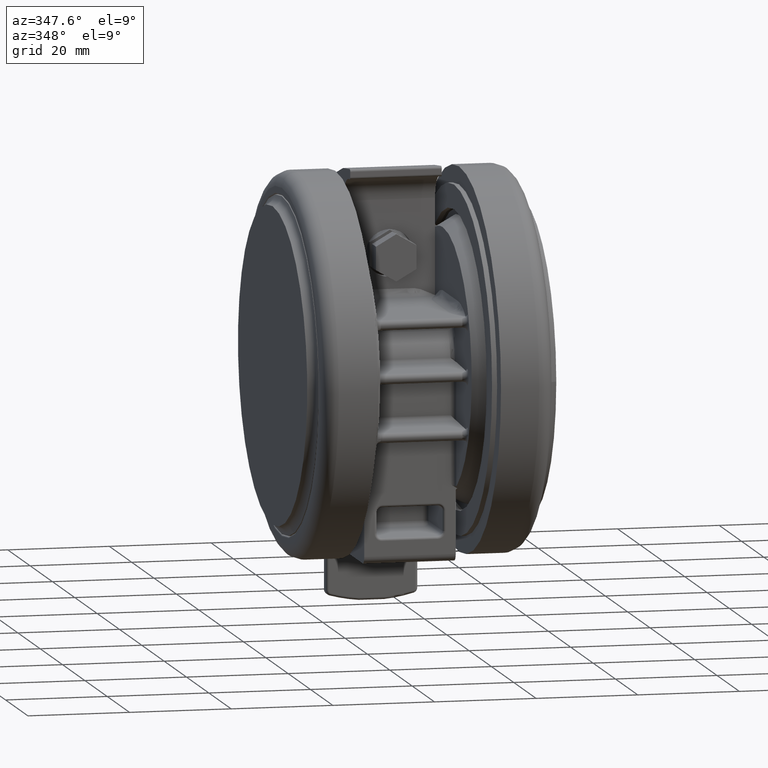
[diagram: clean part render]
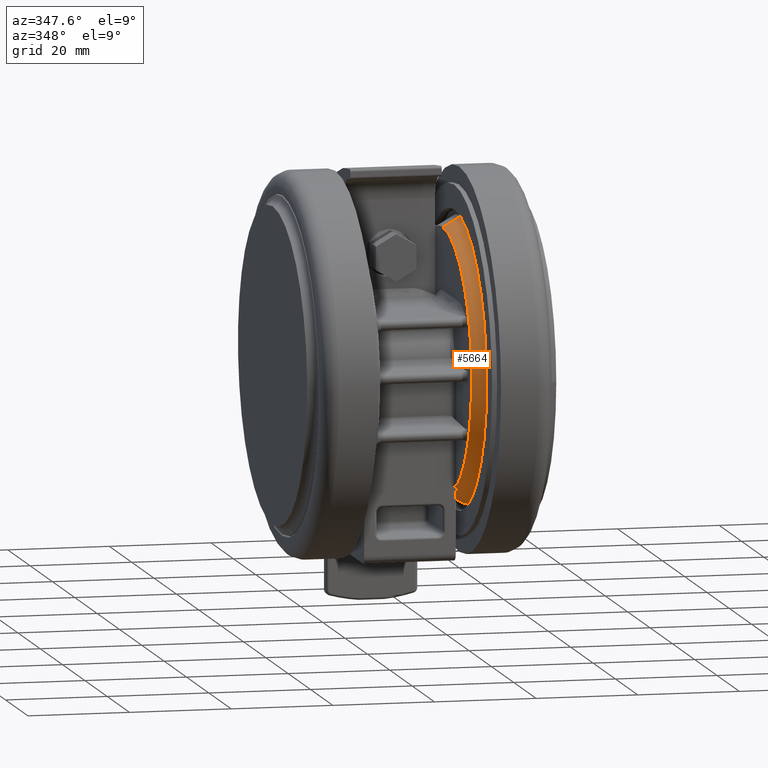
[diagram: same view with one face highlighted and labeled with its STEP entity id]
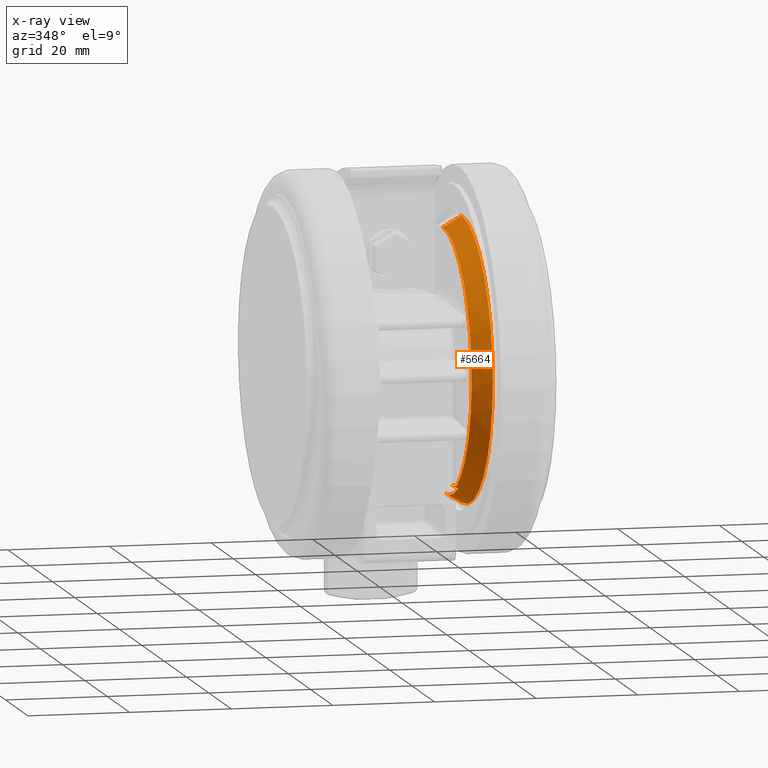
[diagram: x-ray of the same camera — body ghosted, the highlighted face saturated]
A machine part, auxiliary view. The second image highlights one B-rep face of the part: STEP entity #5664.
The next image is the same camera in x-ray: the body ghosted, the highlighted face saturated — about 0% of this face is hidden behind the body in this view.
In plain terms, the highlighted conical surface has half-angle 30 deg.
Its self-contained STEP definition (entity closure, byte-faithful):
#469 = EDGE_CURVE ( 'NONE', #47281, #20265, #19468, .T. ) ;
#1791 = CARTESIAN_POINT ( 'NONE',  ( 22.41038614570070900, 12.75309036844198800, -15.50000000000004400 ) ) ;
#1949 = CARTESIAN_POINT ( 'NONE',  ( 22.89916274320286500, 11.85312388699356800, -15.50000000000004400 ) ) ;
#2288 = CARTESIAN_POINT ( 'NONE',  ( 12.49999999999993200, 22.55252147765298800, -15.50000000000004400 ) ) ;
#2834 = EDGE_CURVE ( 'NONE', #10564, #37634, #45045, .T. ) ;
#3067 = CARTESIAN_POINT ( 'NONE',  ( 0.0000000000000000000, 0.0000000000000000000, -11.80207152584042500 ) ) ;
#3587 = VERTEX_POINT ( 'NONE', #47083 ) ;
#5416 = VECTOR ( 'NONE', #13677, 1000.000000000000100 ) ;
#5548 = CARTESIAN_POINT ( 'NONE',  ( 22.44364010027541000, 12.69447711132572600, -15.50000000000004400 ) ) ;
#5664 = ADVANCED_FACE ( 'NONE', ( #38959 ), #37796, .T. ) ;
#5703 = CARTESIAN_POINT ( 'NONE',  ( 22.95997644721959200, 11.73488862763639800, -15.50000000000004800 ) ) ;
#5809 = CIRCLE ( 'NONE', #45304, 25.78500000000000000 ) ;
#6050 = CARTESIAN_POINT ( 'NONE',  ( 12.18571937659564200, 22.69231277392324500, -15.54830116031981300 ) ) ;
#6788 = DIRECTION ( 'NONE',  ( -0.0000000000000000000, 0.0000000000000000000, 1.000000000000000000 ) ) ;
#6800 = DIRECTION ( 'NONE',  ( 2.997602166487919900E-015, -1.000000000000000000, 0.0000000000000000000 ) ) ;
#7052 = EDGE_CURVE ( 'NONE', #28291, #20265, #36625, .T. ) ;
#7279 = B_SPLINE_CURVE_WITH_KNOTS ( 'NONE', 3,
 ( #16454, #16605, #24140, #1791, #27925, #5548, #31729, #9315, #35445, #13020, #39189, #16754, #42986, #20555, #46759, #24306, #1949, #28086, #5703, #31880 ),
 .UNSPECIFIED., .F., .F.,
 ( 4, 2, 2, 2, 2, 2, 2, 2, 2, 4 ),
 ( 0.0000000000000000000, 0.1000020874904574700, 0.1500031312356849300, 0.2000041749809290700, 0.3000062624713852300, 0.5000104374523284300, 0.7000146124332549100, 0.8000166999237123800, 0.9000187874141840600, 1.000000000000000000 ),
 .UNSPECIFIED. ) ;
#7923 = CARTESIAN_POINT ( 'NONE',  ( 0.0000000000000000000, 0.0000000000000000000, -15.50000000000004400 ) ) ;
#9315 = CARTESIAN_POINT ( 'NONE',  ( 22.48801800333945900, 12.61575664039036800, -15.50000000000004400 ) ) ;
#9461 = DIRECTION ( 'NONE',  ( 0.0000000000000000000, 0.0000000000000000000, 1.000000000000000000 ) ) ;
#9686 = EDGE_CURVE ( 'NONE', #10564, #41043, #26830, .T. ) ;
#9816 = CARTESIAN_POINT ( 'NONE',  ( 11.87953643281361600, 22.75302770325073700, -15.70362219911290300 ) ) ;
#9879 = EDGE_LOOP ( 'NONE', ( #33051, #36621, #21547, #48142, #27484, #29134, #36015, #16121, #41343 ) ) ;
#10564 = VERTEX_POINT ( 'NONE', #37679 ) ;
#10959 = B_SPLINE_CURVE_WITH_KNOTS ( 'NONE', 3,
 ( #29783, #10960, #14887, #41061, #18642, #44838, #22409 ),
 .UNSPECIFIED., .F., .F.,
 ( 4, 3, 4 ),
 ( -0.001191002205650672300, -3.686287386450715100E-018, 0.0005353058589707467700 ),
 .UNSPECIFIED. ) ;
#10960 = CARTESIAN_POINT ( 'NONE',  ( 11.49999999999993200, 22.64765605176770400, -16.16695524650317500 ) ) ;
#11654 = DIRECTION ( 'NONE',  ( 2.997602166487920300E-015, -1.000000000000000000, 0.0000000000000000000 ) ) ;
#12256 = CARTESIAN_POINT ( 'NONE',  ( 11.49999999999993100, 23.36839754929618400, -15.04999999999994600 ) ) ;
#13020 = CARTESIAN_POINT ( 'NONE',  ( 22.57676177074301200, 12.45649938860930700, -15.50000000000004400 ) ) ;
#13200 = CARTESIAN_POINT ( 'NONE',  ( 7.413542009128957600E-014, -25.78500000000000000, -15.50000000000004400 ) ) ;
#13279 = CARTESIAN_POINT ( 'NONE',  ( -8.369305248834285500E-014, 27.92000000000004100, -11.80207152584042500 ) ) ;
#13515 = CARTESIAN_POINT ( 'NONE',  ( 11.61312237730308400, 22.68466530744117200, -16.02052753396478500 ) ) ;
#13677 = DIRECTION ( 'NONE',  ( -1.498801083243962300E-015, 0.5000000000000007800, 0.8660254037844381500 ) ) ;
#13885 = CARTESIAN_POINT ( 'NONE',  ( 8.027383862512344500E-014, -27.92000000000004100, -11.80207152584042500 ) ) ;
#14195 = VECTOR ( 'NONE', #17462, 1000.000000000000100 ) ;
#14887 = CARTESIAN_POINT ( 'NONE',  ( 11.49999999999993100, 22.86327921743131200, -15.83361373088552200 ) ) ;
#15311 = LINE ( 'NONE', #28599, #5416 ) ;
#16121 = ORIENTED_EDGE ( 'NONE', *, *, #38820, .T. ) ;
#16454 = CARTESIAN_POINT ( 'NONE',  ( 22.33527450068471200, 12.88416617321670700, -15.50000000000004400 ) ) ;
#16605 = CARTESIAN_POINT ( 'NONE',  ( 22.35578851440446300, 12.84860441869690800, -15.50000000000004400 ) ) ;
#16622 = DIRECTION ( 'NONE',  ( 0.0000000000000000000, -0.0000000000000000000, -1.000000000000000000 ) ) ;
#16754 = CARTESIAN_POINT ( 'NONE',  ( 22.70857392889291400, 12.21455389124470700, -15.50000000000004400 ) ) ;
#17278 = CARTESIAN_POINT ( 'NONE',  ( 11.49999999999978700, 22.50793047675845700, -16.38231471269344300 ) ) ;
#17462 = DIRECTION ( 'NONE',  ( 1.437568743286594500E-015, -0.5000000000000007800, 0.8660254037844381500 ) ) ;
#18642 = CARTESIAN_POINT ( 'NONE',  ( 11.49999999999993100, 23.17520340723775600, -15.35005442734115800 ) ) ;
#19052 = VERTEX_POINT ( 'NONE', #12256 ) ;
#19468 = LINE ( 'NONE', #39884, #14195 ) ;
#20265 = VERTEX_POINT ( 'NONE', #13885 ) ;
#20395 = EDGE_CURVE ( 'NONE', #41043, #19052, #10959, .T. ) ;
#20555 = CARTESIAN_POINT ( 'NONE',  ( 22.81573732490276300, 12.01292751210558800, -15.50000000000006600 ) ) ;
#20882 = CARTESIAN_POINT ( 'NONE',  ( 12.37650934506089600, 22.61695748588384800, -15.50557922942411100 ) ) ;
#21547 = ORIENTED_EDGE ( 'NONE', *, *, #45677, .F. ) ;
#22103 = VERTEX_POINT ( 'NONE', #46369 ) ;
#22409 = CARTESIAN_POINT ( 'NONE',  ( 11.49999999999993100, 23.36839754929618400, -15.04999999999994600 ) ) ;
#24140 = CARTESIAN_POINT ( 'NONE',  ( 22.37728455494786300, 12.81114146959058600, -15.50000000000004400 ) ) ;
#24306 = CARTESIAN_POINT ( 'NONE',  ( 22.87853581684401400, 11.89289094183418900, -15.50000000000004400 ) ) ;
#24620 = CARTESIAN_POINT ( 'NONE',  ( 11.49999999999993200, 22.43157606925978700, -16.50000000000339300 ) ) ;
#24657 = CARTESIAN_POINT ( 'NONE',  ( 12.43866841006353300, 22.58651523196399300, -15.50000000000339600 ) ) ;
#26607 = CARTESIAN_POINT ( 'NONE',  ( 22.33527450068471200, 12.88416617321670700, -15.50000000000004400 ) ) ;
#26830 = B_SPLINE_CURVE_WITH_KNOTS ( 'NONE', 3,
 ( #2288, #24657, #20882, #28424, #6050, #32224, #9816, #35943, #13515, #39687, #17278, #43492 ),
 .UNSPECIFIED., .F., .F.,
 ( 4, 2, 2, 2, 2, 4 ),
 ( 4.257853947038802600E-016, 0.0002079956209406809700, 0.0004159912418809361200, 0.0008319824837614372600, 0.001247973725641938600, 0.001663964967522440000 ),
 .UNSPECIFIED. ) ;
#27484 = ORIENTED_EDGE ( 'NONE', *, *, #9686, .T. ) ;
#27925 = CARTESIAN_POINT ( 'NONE',  ( 22.42147703036786100, 12.73358150221476800, -15.50000000000004400 ) ) ;
#28074 = DIRECTION ( 'NONE',  ( -2.997602166487920300E-015, 1.000000000000000000, 0.0000000000000000000 ) ) ;
#28086 = CARTESIAN_POINT ( 'NONE',  ( 22.93988299223376600, 11.77412280119717100, -15.50000000000004400 ) ) ;
#28291 = VERTEX_POINT ( 'NONE', #13279 ) ;
#28424 = CARTESIAN_POINT ( 'NONE',  ( 12.25034899944027300, 22.66981781153673100, -15.52953774481964400 ) ) ;
#28589 = EDGE_CURVE ( 'NONE', #3587, #47281, #5809, .T. ) ;
#28599 = CARTESIAN_POINT ( 'NONE',  ( -7.729317186289102800E-014, 25.78500000000000000, -15.50000000000004400 ) ) ;
#29134 = ORIENTED_EDGE ( 'NONE', *, *, #20395, .T. ) ;
#29167 = CARTESIAN_POINT ( 'NONE',  ( 0.0000000000000000000, 0.0000000000000000000, -15.04999999999994600 ) ) ;
#29181 = DIRECTION ( 'NONE',  ( 0.0000000000000000000, -0.0000000000000000000, -1.000000000000000000 ) ) ;
#29783 = CARTESIAN_POINT ( 'NONE',  ( 11.49999999999993200, 22.43157606925978700, -16.50000000000339300 ) ) ;
#29933 = EDGE_CURVE ( 'NONE', #19052, #22103, #46086, .T. ) ;
#31729 = CARTESIAN_POINT ( 'NONE',  ( 22.45473149710331000, 12.67484790778240700, -15.50000000000004400 ) ) ;
#31880 = CARTESIAN_POINT ( 'NONE',  ( 22.97977175375081400, 11.69599568850438900, -15.50000000000004400 ) ) ;
#32224 = CARTESIAN_POINT ( 'NONE',  ( 11.99921545959445800, 22.74228217131627600, -15.62408515773817000 ) ) ;
#32967 = DIRECTION ( 'NONE',  ( -5.551115123125805400E-016, -1.000000000000000000, 0.0000000000000000000 ) ) ;
#33051 = ORIENTED_EDGE ( 'NONE', *, *, #469, .F. ) ;
#34080 = DIRECTION ( 'NONE',  ( 0.0000000000000000000, -0.0000000000000000000, -1.000000000000000000 ) ) ;
#35445 = CARTESIAN_POINT ( 'NONE',  ( 22.51022536471706200, 12.57609080999036900, -15.50000000000004400 ) ) ;
#35943 = CARTESIAN_POINT ( 'NONE',  ( 11.68640344715331200, 22.72391981184880900, -15.90229330842897500 ) ) ;
#36015 = ORIENTED_EDGE ( 'NONE', *, *, #29933, .T. ) ;
#36621 = ORIENTED_EDGE ( 'NONE', *, *, #28589, .F. ) ;
#36625 = CIRCLE ( 'NONE', #38512, 27.92000000000000200 ) ;
#37189 = AXIS2_PLACEMENT_3D ( 'NONE', #29167, #6788, #32967 ) ;
#37634 = VERTEX_POINT ( 'NONE', #26607 ) ;
#37679 = CARTESIAN_POINT ( 'NONE',  ( 12.49999999999993200, 22.55252147765298800, -15.50000000000004400 ) ) ;
#37796 = CONICAL_SURFACE ( 'NONE', #40641, 25.78500000000000000, 0.5235987755982995900 ) ;
#38512 = AXIS2_PLACEMENT_3D ( 'NONE', #3067, #29181, #6800 ) ;
#38820 = EDGE_CURVE ( 'NONE', #22103, #28291, #15311, .T. ) ;
#38959 = FACE_OUTER_BOUND ( 'NONE', #9879, .T. ) ;
#39044 = CARTESIAN_POINT ( 'NONE',  ( 0.0000000000000000000, 0.0000000000000000000, -15.50000000000004400 ) ) ;
#39174 = CARTESIAN_POINT ( 'NONE',  ( 0.0000000000000000000, 0.0000000000000000000, -15.50000000000004400 ) ) ;
#39189 = CARTESIAN_POINT ( 'NONE',  ( 22.62100360601481300, 12.37597885017388700, -15.50000000000004400 ) ) ;
#39687 = CARTESIAN_POINT ( 'NONE',  ( 11.52083478457254600, 22.57667256984626300, -16.25983080084041200 ) ) ;
#39884 = CARTESIAN_POINT ( 'NONE',  ( 7.413542009128957600E-014, -25.78500000000000000, -15.50000000000004400 ) ) ;
#40641 = AXIS2_PLACEMENT_3D ( 'NONE', #39174, #9461, #28074 ) ;
#41043 = VERTEX_POINT ( 'NONE', #24620 ) ;
#41061 = CARTESIAN_POINT ( 'NONE',  ( 11.49999999999993100, 23.07847969429528200, -15.50000000000004400 ) ) ;
#41343 = ORIENTED_EDGE ( 'NONE', *, *, #7052, .T. ) ;
#42845 = DIRECTION ( 'NONE',  ( 2.997602166487920300E-015, -1.000000000000000000, 0.0000000000000000000 ) ) ;
#42986 = CARTESIAN_POINT ( 'NONE',  ( 22.75190236996941800, 12.13364956823716800, -15.49999999999994700 ) ) ;
#43379 = AXIS2_PLACEMENT_3D ( 'NONE', #39044, #16622, #42845 ) ;
#43492 = CARTESIAN_POINT ( 'NONE',  ( 11.49999999999993200, 22.43157606925978700, -16.50000000000339300 ) ) ;
#44838 = CARTESIAN_POINT ( 'NONE',  ( 11.49999999999993100, 23.27184173503338400, -15.20005374416325200 ) ) ;
#45045 = CIRCLE ( 'NONE', #43379, 25.78500000000000000 ) ;
#45304 = AXIS2_PLACEMENT_3D ( 'NONE', #7923, #34080, #11654 ) ;
#45677 = EDGE_CURVE ( 'NONE', #37634, #3587, #7279, .T. ) ;
#46086 = CIRCLE ( 'NONE', #37189, 26.04480762113535200 ) ;
#46369 = CARTESIAN_POINT ( 'NONE',  ( -7.807197175087654000E-014, 26.04480762113539100, -15.04999999999994600 ) ) ;
#46759 = CARTESIAN_POINT ( 'NONE',  ( 22.83682311550021600, 11.97279274179242700, -15.50000000000004400 ) ) ;
#47083 = CARTESIAN_POINT ( 'NONE',  ( 22.97977175375081400, 11.69599568850438900, -15.50000000000004400 ) ) ;
#47281 = VERTEX_POINT ( 'NONE', #13200 ) ;
#48142 = ORIENTED_EDGE ( 'NONE', *, *, #2834, .F. ) ;